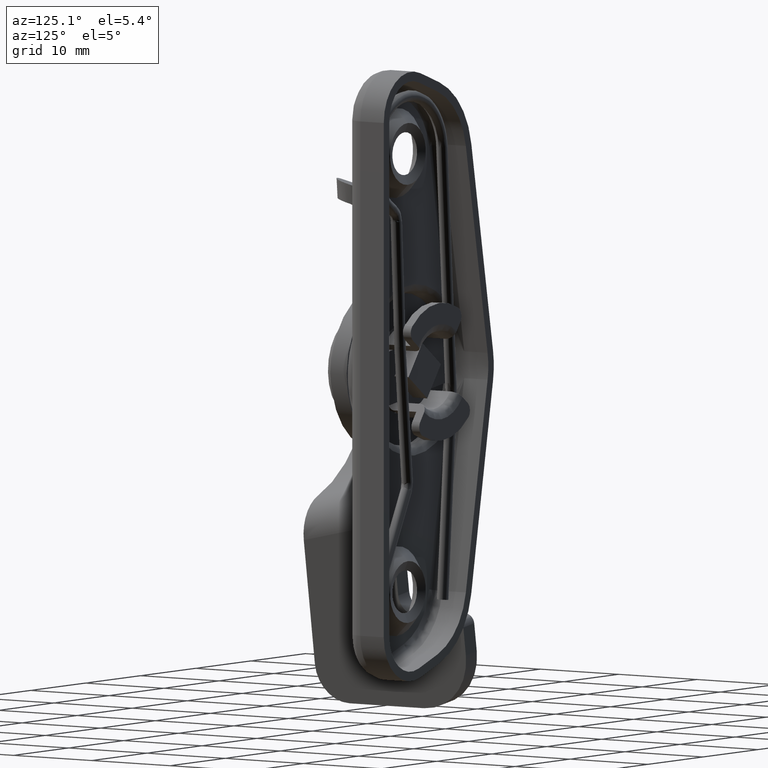
[diagram: clean part render]
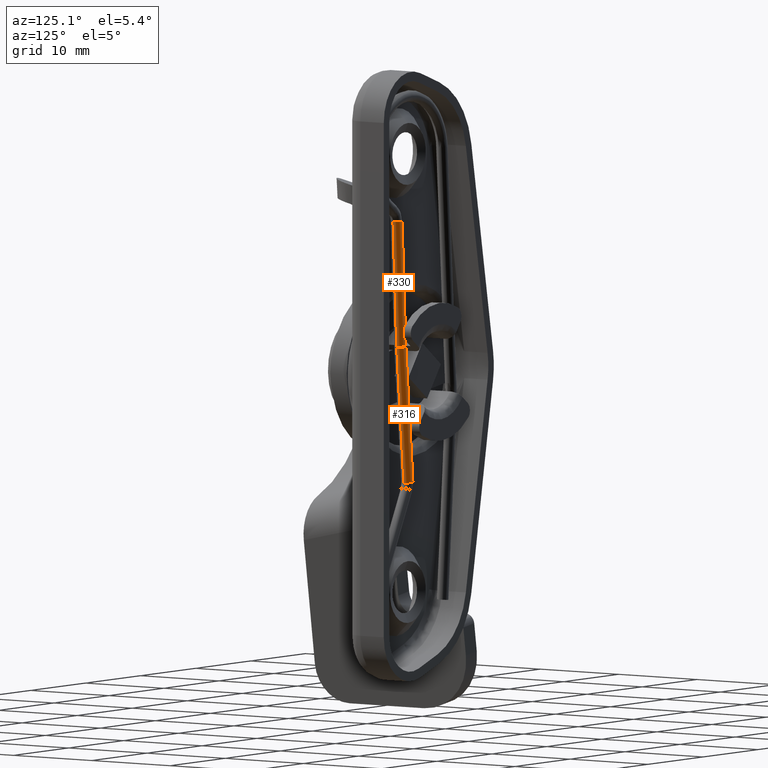
[diagram: same view with one multi-face feature highlighted, each face labeled with its STEP entity id]
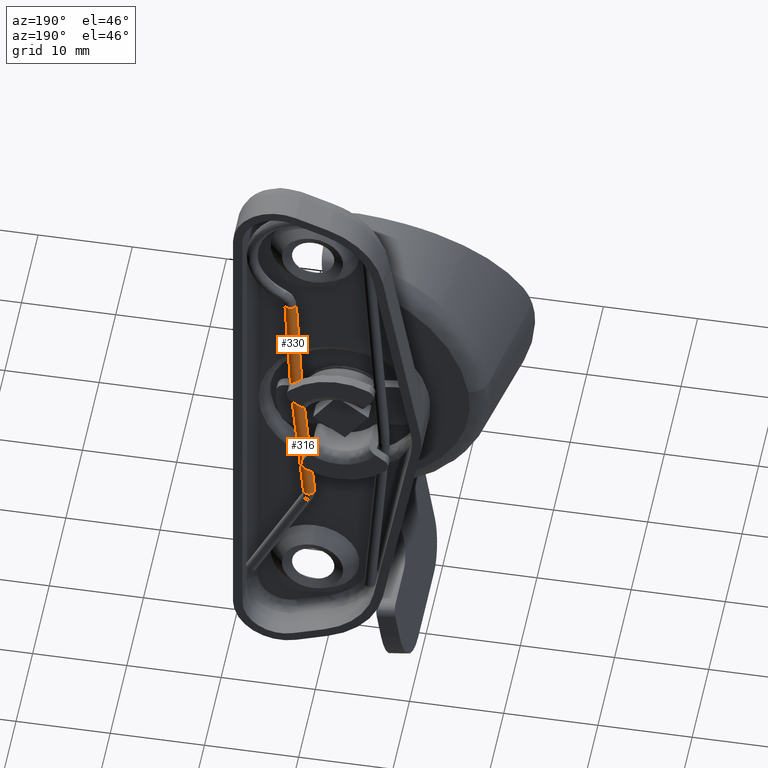
[diagram: same view with one multi-face feature highlighted, each face labeled with its STEP entity id]
A machine part, auxiliary view. The highlighted faces form ONE feature: a constant-radius fillet chain: 2 tangent blend faces with common blend radius 0.6 mm. The faces share edges in the B-rep.
A second angle (auxiliary view) of the same feature is appended — it is thin or edge-on in the first view.
Their STEP definitions:
[1] entity #330 (Cylinder):
#330=ADVANCED_FACE('',(#2155),#2154,.T.);
#2154=CYLINDRICAL_SURFACE('',#3885,6.00000000000E-01);
#2155=FACE_OUTER_BOUND('',#3886,.T.);
#3882=CARTESIAN_POINT('',(-1.73703771036E+01,6.10000000000E+00,2.90332457025E+00));
#3883=DIRECTION('',(-5.08330028539E-02,-0.00000000000E+00,-9.98707167202E-01));
#3884=DIRECTION('',(-9.98707167202E-01,-5.89562440797E-15,5.08330028539E-02));
#3885=AXIS2_PLACEMENT_3D('',#3882,#3883,#3884);
#3886=EDGE_LOOP('',(#4794,#4795,#4796,#4797));
#4794=ORIENTED_EDGE('',*,*,#5230,.F.);
#4795=ORIENTED_EDGE('',*,*,#5255,.F.);
#4796=ORIENTED_EDGE('',*,*,#5254,.T.);
#4797=ORIENTED_EDGE('',*,*,#5256,.T.);
#5230=EDGE_CURVE('',#8091,#8098,#8099,.T.);
#5254=EDGE_CURVE('',#8234,#8233,#8253,.T.);
#5255=EDGE_CURVE('',#8234,#8091,#8259,.T.);
#5256=EDGE_CURVE('',#8233,#8098,#8265,.T.);
#8091=VERTEX_POINT('',#10183);
#8098=VERTEX_POINT('',#10186);
#8099=(BOUNDED_CURVE() B_SPLINE_CURVE(2,(#10187,#10188,#10189,#10190,#10191),.UNSPECIFIED.,.F.,.F.) B_SPLINE_CURVE_WITH_KNOTS((3,2,3),(3.14159265342E+00,4.71238898038E+00,6.28318530718E+00),.UNSPECIFIED.) CURVE() GEOMETRIC_REPRESENTATION_ITEM() RATIONAL_B_SPLINE_CURVE((1.00000000000E+00,7.07106781187E-01,1.00000000000E+00,7.07106781187E-01,1.00000000000E+00)) REPRESENTATION_ITEM('') );
#8233=VERTEX_POINT('',#10271);
#8234=VERTEX_POINT('',#10272);
#8253=CIRCLE('',#10286,6.00000000000E-01);
#8259=(BOUNDED_CURVE() B_SPLINE_CURVE(1,(#10287,#10288),.UNSPECIFIED.,.F.,.F.) B_SPLINE_CURVE_WITH_KNOTS((2,2),(8.33333343261E-02,9.15179612084E-01),.UNSPECIFIED.) CURVE() GEOMETRIC_REPRESENTATION_ITEM() RATIONAL_B_SPLINE_CURVE((1.00000000000E+00,1.00000000000E+00)) REPRESENTATION_ITEM('') );
#8265=(BOUNDED_CURVE() B_SPLINE_CURVE(1,(#10289,#10290),.UNSPECIFIED.,.F.,.F.) B_SPLINE_CURVE_WITH_KNOTS((2,2),(8.33333333333E-02,9.16666666667E-01),.UNSPECIFIED.) CURVE() GEOMETRIC_REPRESENTATION_ITEM() RATIONAL_B_SPLINE_CURVE((7.50000000000E-01,7.50000000000E-01)) REPRESENTATION_ITEM('') );
#10183=CARTESIAN_POINT('',(-1.79684014469E+01,6.09999999991E+00,2.95739972026E+00));
#10186=CARTESIAN_POINT('',(-1.67711528033E+01,6.10000000000E+00,2.87282476853E+00));
#10187=CARTESIAN_POINT('',(-1.79684014469E+01,6.10000000000E+00,2.95739972026E+00));
#10188=CARTESIAN_POINT('',(-1.79684014469E+01,6.70000000000E+00,2.95739972026E+00));
#10189=CARTESIAN_POINT('',(-1.73697771251E+01,6.70000000000E+00,2.91511224440E+00));
#10190=CARTESIAN_POINT('',(-1.67711528033E+01,6.70000000000E+00,2.87282476853E+00));
#10191=CARTESIAN_POINT('',(-1.67711528033E+01,6.10000000000E+00,2.87282476853E+00));
#10271=CARTESIAN_POINT('',(-1.60987071672E+01,6.10000000000E+00,1.60842472428E+01));
#10272=CARTESIAN_POINT('',(-1.72971557678E+01,6.10000000000E+00,1.61452468462E+01));
#10283=CARTESIAN_POINT('',(-1.66979314675E+01,6.10000000000E+00,1.61147470445E+01));
#10284=DIRECTION('',(-5.08330028539E-02,-8.68444914371E-14,-9.98707167202E-01));
#10285=DIRECTION('',(-9.98707167202E-01,-1.22460635382E-16,5.08330028539E-02));
#10286=AXIS2_PLACEMENT_3D('',#10283,#10284,#10285);
#10287=CARTESIAN_POINT('',(-1.72971557686E+01,6.10000000000E+00,1.61452468305E+01));
#10288=CARTESIAN_POINT('',(-1.79684014479E+01,6.10000000000E+00,2.95739969957E+00));
#10289=CARTESIAN_POINT('',(-1.60987071672E+01,6.10000000000E+00,1.60842472428E+01));
#10290=CARTESIAN_POINT('',(-1.67711528033E+01,6.10000000000E+00,2.87282476853E+00));
[2] entity #316 (Cylinder):
#316=ADVANCED_FACE('',(#2015),#2014,.T.);
#2014=CYLINDRICAL_SURFACE('',#3709,6.00000000000E-01);
#2015=FACE_OUTER_BOUND('',#3710,.T.);
#3706=CARTESIAN_POINT('',(-1.86661570625E+01,6.10000000000E+00,-1.14192971004E+01));
#3707=DIRECTION('',(-9.00707244900E-02,-0.00000000000E+00,-9.95935371693E-01));
#3708=DIRECTION('',(-9.95935371693E-01,-1.45473230946E-15,9.00707244900E-02));
#3709=AXIS2_PLACEMENT_3D('',#3706,#3707,#3708);
#3710=EDGE_LOOP('',(#4738,#4739,#4740,#4741));
#4738=ORIENTED_EDGE('',*,*,#5227,.F.);
#4739=ORIENTED_EDGE('',*,*,#5229,.F.);
#4740=ORIENTED_EDGE('',*,*,#5230,.T.);
#4741=ORIENTED_EDGE('',*,*,#5231,.T.);
#5227=EDGE_CURVE('',#8066,#8059,#8079,.T.);
#5229=EDGE_CURVE('',#8091,#8066,#8092,.T.);
#5230=EDGE_CURVE('',#8091,#8098,#8099,.T.);
#5231=EDGE_CURVE('',#8098,#8059,#8105,.T.);
#8059=VERTEX_POINT('',#10159);
#8066=VERTEX_POINT('',#10165);
#8079=CIRCLE('',#10178,6.00000000000E-01);
#8091=VERTEX_POINT('',#10183);
#8092=(BOUNDED_CURVE() B_SPLINE_CURVE(1,(#10184,#10185),.UNSPECIFIED.,.F.,.F.) B_SPLINE_CURVE_WITH_KNOTS((2,2),(8.46989676349E-02,9.16666667416E-01),.UNSPECIFIED.) CURVE() GEOMETRIC_REPRESENTATION_ITEM() RATIONAL_B_SPLINE_CURVE((1.00000000000E+00,1.00000000000E+00)) REPRESENTATION_ITEM('') );
#8098=VERTEX_POINT('',#10186);
#8099=(BOUNDED_CURVE() B_SPLINE_CURVE(2,(#10187,#10188,#10189,#10190,#10191),.UNSPECIFIED.,.F.,.F.) B_SPLINE_CURVE_WITH_KNOTS((3,2,3),(3.14159265342E+00,4.71238898038E+00,6.28318530718E+00),.UNSPECIFIED.) CURVE() GEOMETRIC_REPRESENTATION_ITEM() RATIONAL_B_SPLINE_CURVE((1.00000000000E+00,7.07106781187E-01,1.00000000000E+00,7.07106781187E-01,1.00000000000E+00)) REPRESENTATION_ITEM('') );
#8105=(BOUNDED_CURVE() B_SPLINE_CURVE(1,(#10192,#10193),.UNSPECIFIED.,.F.,.F.) B_SPLINE_CURVE_WITH_KNOTS((2,2),(8.33333333333E-02,9.16666666667E-01),.UNSPECIFIED.) CURVE() GEOMETRIC_REPRESENTATION_ITEM() RATIONAL_B_SPLINE_CURVE((7.50000000000E-01,7.50000000000E-01)) REPRESENTATION_ITEM('') );
#10159=CARTESIAN_POINT('',(-1.80685958395E+01,6.10000000000E+00,-1.14733395351E+01));
#10165=CARTESIAN_POINT('',(-1.92637182855E+01,6.10000000000E+00,-1.13652546657E+01));
#10175=CARTESIAN_POINT('',(-1.86661570625E+01,6.10000000000E+00,-1.14192971004E+01));
#10176=DIRECTION('',(-9.00707244900E-02,-2.94455736650E-15,-9.95935371693E-01));
#10177=DIRECTION('',(-9.95935371693E-01,-1.22460635382E-16,9.00707244900E-02));
#10178=AXIS2_PLACEMENT_3D('',#10175,#10176,#10177);
#10183=CARTESIAN_POINT('',(-1.79684014469E+01,6.09999999991E+00,2.95739972026E+00));
#10184=CARTESIAN_POINT('',(-1.79684014486E+01,6.10000000000E+00,2.95739970104E+00));
#10185=CARTESIAN_POINT('',(-1.92637182867E+01,6.10000000000E+00,-1.13652546786E+01));
#10186=CARTESIAN_POINT('',(-1.67711528033E+01,6.10000000000E+00,2.87282476853E+00));
#10187=CARTESIAN_POINT('',(-1.79684014469E+01,6.10000000000E+00,2.95739972026E+00));
#10188=CARTESIAN_POINT('',(-1.79684014469E+01,6.70000000000E+00,2.95739972026E+00));
#10189=CARTESIAN_POINT('',(-1.73697771251E+01,6.70000000000E+00,2.91511224440E+00));
#10190=CARTESIAN_POINT('',(-1.67711528033E+01,6.70000000000E+00,2.87282476853E+00));
#10191=CARTESIAN_POINT('',(-1.67711528033E+01,6.10000000000E+00,2.87282476853E+00));
#10192=CARTESIAN_POINT('',(-1.67711528033E+01,6.10000000000E+00,2.87282476853E+00));
#10193=CARTESIAN_POINT('',(-1.80685958395E+01,6.10000000000E+00,-1.14733395351E+01));